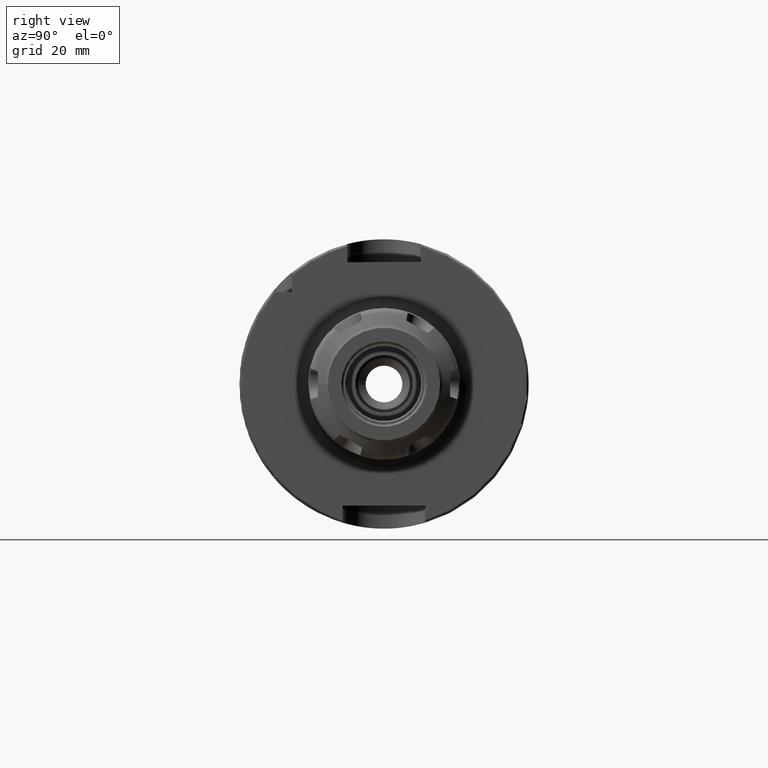
[diagram: clean part render]
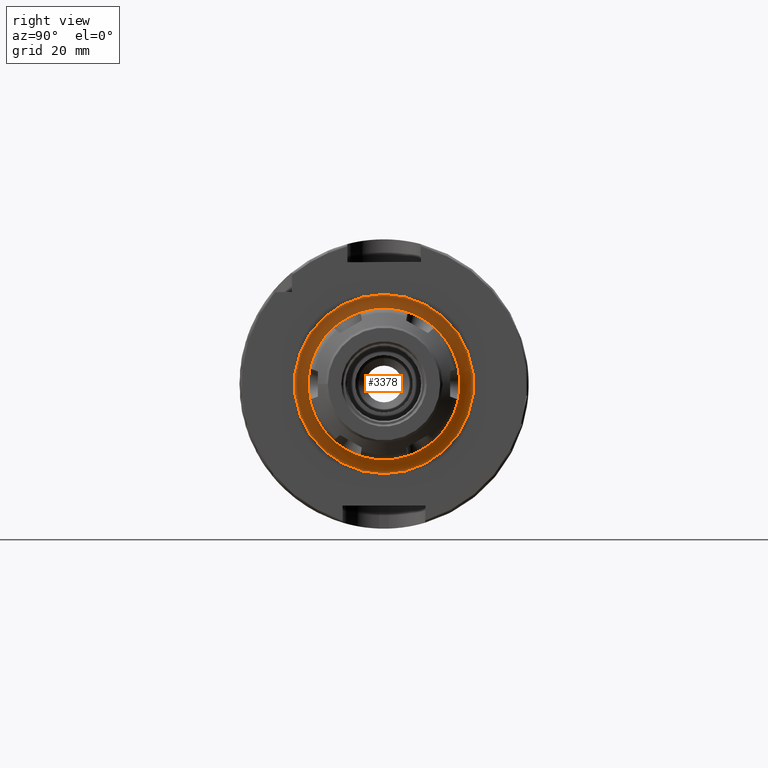
[diagram: same view with one face highlighted and labeled with its STEP entity id]
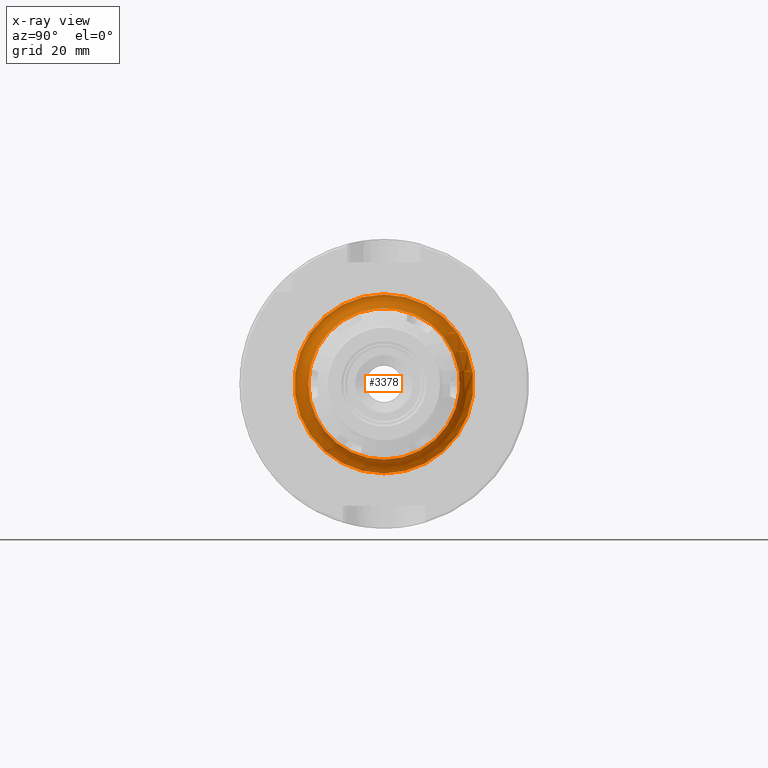
[diagram: x-ray of the same camera — body ghosted, the highlighted face saturated]
A machine part, right view. The second image highlights one B-rep face of the part: STEP entity #3378.
The next image is the same camera in x-ray: the body ghosted, the highlighted face saturated — about 2% of this face is hidden behind the body in this view.
In plain terms, the highlighted toroidal blend (fillet) surface has major radius 19.5 mm and minor (blend) radius 3 mm.
Its self-contained STEP definition (entity closure, byte-faithful):
#258=TOROIDAL_SURFACE('',#3673,19.5,3.);
#357=FACE_OUTER_BOUND('',#559,.T.);
#559=EDGE_LOOP('',(#2305,#2306,#2307,#2308,#2309));
#1157=CIRCLE('',#3671,16.5);
#1158=CIRCLE('',#3672,16.5);
#1159=CIRCLE('',#3674,3.);
#1160=CIRCLE('',#3675,19.5);
#1368=VERTEX_POINT('',#5165);
#1369=VERTEX_POINT('',#5167);
#1370=VERTEX_POINT('',#5171);
#1733=EDGE_CURVE('',#1369,#1368,#1157,.T.);
#1734=EDGE_CURVE('',#1368,#1369,#1158,.T.);
#1735=EDGE_CURVE('',#1369,#1370,#1159,.T.);
#1736=EDGE_CURVE('',#1370,#1370,#1160,.T.);
#2305=ORIENTED_EDGE('',*,*,#1734,.T.);
#2306=ORIENTED_EDGE('',*,*,#1735,.T.);
#2307=ORIENTED_EDGE('',*,*,#1736,.T.);
#2308=ORIENTED_EDGE('',*,*,#1735,.F.);
#2309=ORIENTED_EDGE('',*,*,#1733,.T.);
#3378=ADVANCED_FACE('',(#357),#258,.F.);
#3671=AXIS2_PLACEMENT_3D('',#5168,#4147,#4148);
#3672=AXIS2_PLACEMENT_3D('',#5169,#4149,#4150);
#3673=AXIS2_PLACEMENT_3D('',#5170,#4151,#4152);
#3674=AXIS2_PLACEMENT_3D('',#5172,#4153,#4154);
#3675=AXIS2_PLACEMENT_3D('',#5173,#4155,#4156);
#4147=DIRECTION('center_axis',(-1.,0.,0.));
#4148=DIRECTION('ref_axis',(0.,-1.,-1.22464679914735E-16));
#4149=DIRECTION('center_axis',(-1.,0.,0.));
#4150=DIRECTION('ref_axis',(0.,-1.,-1.22464679914735E-16));
#4151=DIRECTION('center_axis',(-1.,0.,0.));
#4152=DIRECTION('ref_axis',(0.,0.,1.));
#4153=DIRECTION('center_axis',(0.,-1.,1.22464679914735E-16));
#4154=DIRECTION('ref_axis',(0.,-1.22464679914735E-16,-1.));
#4155=DIRECTION('center_axis',(1.,0.,0.));
#4156=DIRECTION('ref_axis',(0.,-1.,-1.22464679914735E-16));
#5165=CARTESIAN_POINT('',(29.,-16.5,-2.02066721859313E-15));
#5167=CARTESIAN_POINT('',(29.,-2.02066721859313E-15,-16.5));
#5168=CARTESIAN_POINT('Origin',(29.,0.,0.));
#5169=CARTESIAN_POINT('Origin',(29.,0.,0.));
#5170=CARTESIAN_POINT('Origin',(29.,0.,0.));
#5171=CARTESIAN_POINT('',(26.,-2.38806125833734E-15,-19.5));
#5172=CARTESIAN_POINT('Origin',(29.,-2.38806125833734E-15,-19.5));
#5173=CARTESIAN_POINT('Origin',(26.,0.,0.));